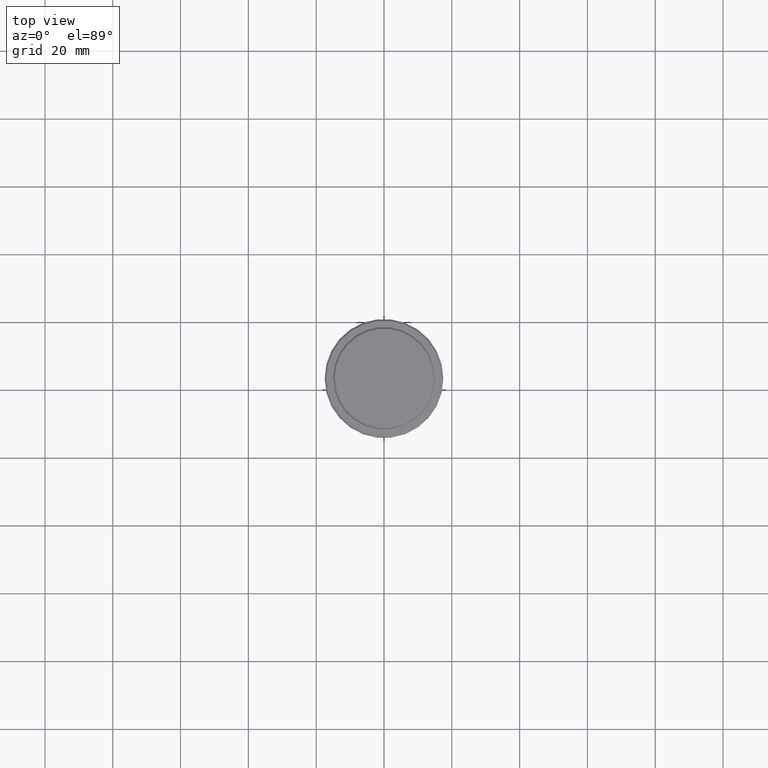
[diagram: clean part render]
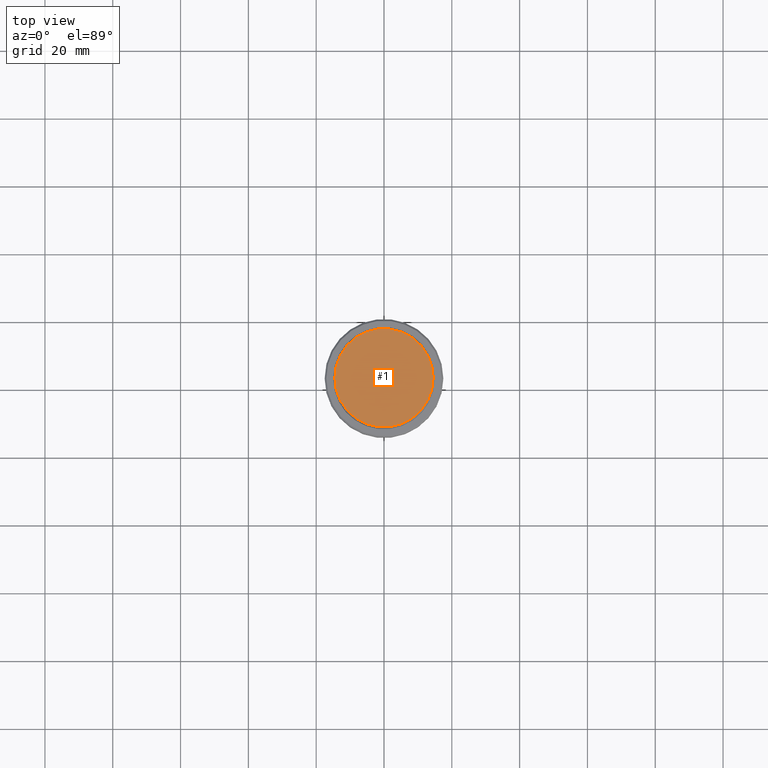
[diagram: same view with one face highlighted and labeled with its STEP entity id]
A machine part, top view. The second image highlights one B-rep face of the part: STEP entity #1.
In plain terms, the highlighted planar face has unit normal (0, -0, 1).
Its self-contained STEP definition (entity closure, byte-faithful):
#1 = ADVANCED_FACE ( 'NONE', ( #711 ), #396, .T. ) ;
#181 = CARTESIAN_POINT ( 'NONE',  ( -14.49999999999998401, 0.000000000000000000, 0.000000000000000000 ) ) ;
#217 = AXIS2_PLACEMENT_3D ( 'NONE', #530, #958, #1163 ) ;
#246 = ORIENTED_EDGE ( 'NONE', *, *, #549, .T. ) ;
#396 = PLANE ( 'NONE',  #1403 ) ;
#406 = CARTESIAN_POINT ( 'NONE',  ( 0.000000000000000000, 0.000000000000000000, 0.000000000000000000 ) ) ;
#419 = ORIENTED_EDGE ( 'NONE', *, *, #1029, .T. ) ;
#530 = CARTESIAN_POINT ( 'NONE',  ( 0.000000000000000000, 0.000000000000000000, 0.000000000000000000 ) ) ;
#549 = EDGE_CURVE ( 'NONE', #1025, #921, #810, .T. ) ;
#609 = CIRCLE ( 'NONE', #866, 14.49999999999998401 ) ;
#711 = FACE_OUTER_BOUND ( 'NONE', #1207, .T. ) ;
#735 = DIRECTION ( 'NONE',  ( -0.000000000000000000, -0.000000000000000000, 1.000000000000000000 ) ) ;
#746 = DIRECTION ( 'NONE',  ( 1.000000000000000000, 0.000000000000000000, 0.000000000000000000 ) ) ;
#810 = CIRCLE ( 'NONE', #217, 14.49999999999998401 ) ;
#844 = DIRECTION ( 'NONE',  ( 0.000000000000000000, -0.000000000000000000, 1.000000000000000000 ) ) ;
#866 = AXIS2_PLACEMENT_3D ( 'NONE', #1396, #735, #746 ) ;
#921 = VERTEX_POINT ( 'NONE', #1022 ) ;
#958 = DIRECTION ( 'NONE',  ( -0.000000000000000000, -0.000000000000000000, 1.000000000000000000 ) ) ;
#1022 = CARTESIAN_POINT ( 'NONE',  ( 14.49999999999998401, 1.806354028742345013E-15, 0.000000000000000000 ) ) ;
#1025 = VERTEX_POINT ( 'NONE', #181 ) ;
#1029 = EDGE_CURVE ( 'NONE', #921, #1025, #609, .T. ) ;
#1163 = DIRECTION ( 'NONE',  ( 1.000000000000000000, 0.000000000000000000, 0.000000000000000000 ) ) ;
#1207 = EDGE_LOOP ( 'NONE', ( #246, #419 ) ) ;
#1271 = DIRECTION ( 'NONE',  ( 1.000000000000000000, 0.000000000000000000, 0.000000000000000000 ) ) ;
#1396 = CARTESIAN_POINT ( 'NONE',  ( 0.000000000000000000, 0.000000000000000000, 0.000000000000000000 ) ) ;
#1403 = AXIS2_PLACEMENT_3D ( 'NONE', #406, #844, #1271 ) ;